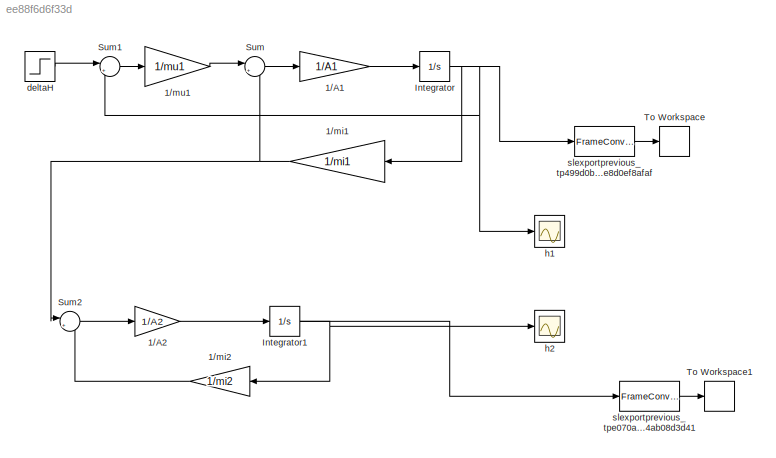
MODEL slx_ee88f6d6f33d
KIND model
BLOCK [Gain] 1//A1
  Gain = 1/A1
BLOCK [Gain] 1//A2
  Gain = 1/A2
BLOCK [Gain] 1//mi1
  Gain = 1/mi1
BLOCK [Gain] 1//mi2
  Gain = 1/mi2
BLOCK [Gain] 1//mu1
  Gain = 1/mu1
BLOCK [Integrator] Integrator
  InitialCondition = 1
  Ports = [1, 1]
BLOCK [Integrator] Integrator1
  InitialCondition = 1
  Ports = [1, 1]
BLOCK [Sum] Sum
  Inputs = |+-
  Ports = [2, 1]
BLOCK [Sum] Sum1
  Inputs = |+-
  Ports = [2, 1]
BLOCK [Sum] Sum2
  Inputs = |+-
  Ports = [2, 1]
BLOCK [ToWorkspace] To Workspace
  FixptAsFi = on
  MaxDataPoints = inf
  Ports = [1]
  SampleTime = -1
  VariableName = d1
BLOCK [ToWorkspace] To Workspace1
  FixptAsFi = on
  MaxDataPoints = inf
  Ports = [1]
  SampleTime = -1
  VariableName = d2
BLOCK [Step] deltaH
  After = 15
  SampleTime = 0
BLOCK [Scope] h1
  DataFormat = Array
  Decimation = 1
  Floating = off
  Grid = on
  LimitDataPoints = on
  MaxDataPoints = 5000
  NumInputPorts = 1
  Ports = [1]
  SampleInput = off
  SampleTime = -1
  SaveName = ScopeData
  SaveToWorkspace = off
  ShowLegends = off
  TickLabels = OneTimeTick
  TimeRange = 600
  YMax = 10
  YMin = -10
  ZoomMode = on
BLOCK [Scope] h2
  DataFormat = Array
  Decimation = 1
  Floating = off
  Grid = on
  LimitDataPoints = on
  MaxDataPoints = 5000
  NumInputPorts = 1
  Ports = [1]
  SampleInput = off
  SampleTime = -1
  SaveName = ScopeData1
  SaveToWorkspace = off
  ShowLegends = off
  TickLabels = OneTimeTick
  TimeRange = 600
  YMax = 10
  YMin = -10
  ZoomMode = on
BLOCK [FrameConversion] slexportprevious_tp499d0be6_9dd3_4259_8645_6e8d0ef8afaf
  OutFrame = Sample-based
  Ports = [1, 1]
BLOCK [FrameConversion] slexportprevious_tpe070a98f_0d95_4aa7_a449_b64ab08d3d41
  OutFrame = Sample-based
  Ports = [1, 1]
LINE 1//A1:1 -> Integrator:1
LINE 1//A2:1 -> Integrator1:1
NET 1//mi1:1 -> Sum2:1, Sum:2
LINE 1//mi2:1 -> Sum2:2
LINE 1//mu1:1 -> Sum:1
NET Integrator1:1 -> 1//mi2:1, h2:1, slexportprevious_tpe070a98f_0d95_4aa7_a449_b64ab08d3d41:1
NET Integrator:1 -> 1//mi1:1, Sum1:2, h1:1, slexportprevious_tp499d0be6_9dd3_4259_8645_6e8d0ef8afaf:1
LINE Sum1:1 -> 1//mu1:1
LINE Sum2:1 -> 1//A2:1
LINE Sum:1 -> 1//A1:1
LINE deltaH:1 -> Sum1:1
LINE slexportprevious_tp499d0be6_9dd3_4259_8645_6e8d0ef8afaf:1 -> To Workspace:1
LINE slexportprevious_tpe070a98f_0d95_4aa7_a449_b64ab08d3d41:1 -> To Workspace1:1
note: NET lines group one-source signal fan-out (src -> all destinations, sorted); 1:1 wires keep LINE
